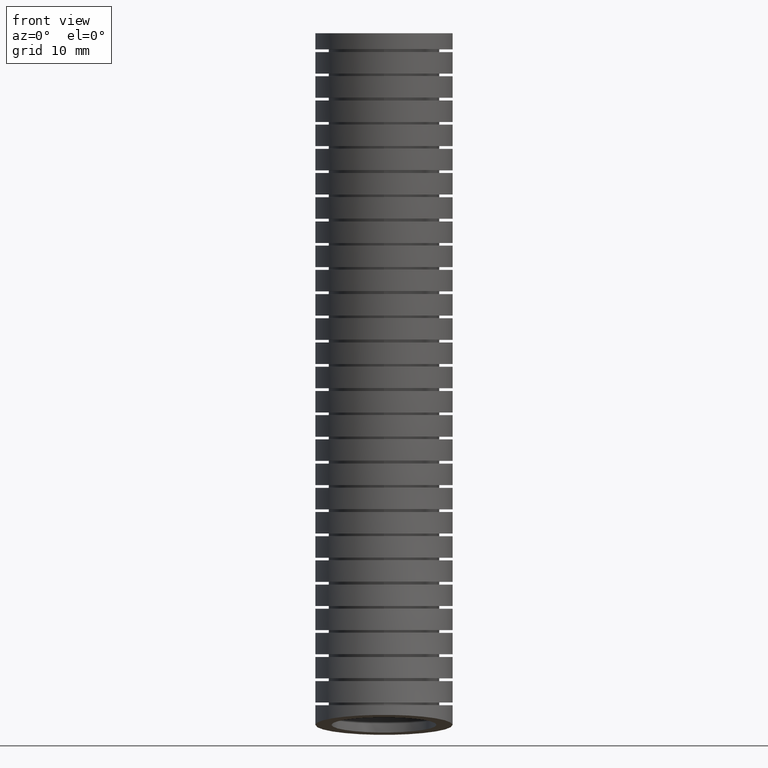
[diagram: clean part render]
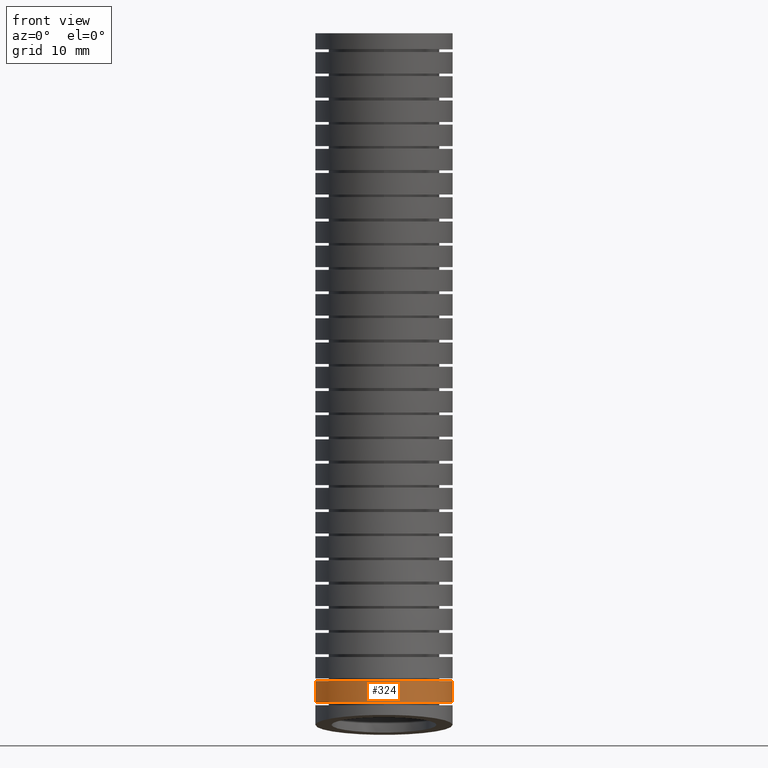
[diagram: same view with one face highlighted and labeled with its STEP entity id]
A machine part, front view. The second image highlights one B-rep face of the part: STEP entity #324.
In plain terms, the highlighted face is a freeform B-spline surface patch.
Its self-contained STEP definition (entity closure, byte-faithful):
#173 = VERTEX_POINT ( 'NONE', #14022 ) ;
#174 = ORIENTED_EDGE ( 'NONE', *, *, #175, .T. ) ;
#175 = EDGE_CURVE ( 'NONE', #173, #176, #14020, .T. ) ;
#176 = VERTEX_POINT ( 'NONE', #14059 ) ;
#177 = ORIENTED_EDGE ( 'NONE', *, *, #178, .F. ) ;
#178 = EDGE_CURVE ( 'NONE', #326, #176, #14218, .T. ) ;
#181 = EDGE_CURVE ( 'NONE', #326, #182, #8550, .T. ) ;
#182 = VERTEX_POINT ( 'NONE', #8501 ) ;
#183 = ORIENTED_EDGE ( 'NONE', *, *, #233, .T. ) ;
#233 = EDGE_CURVE ( 'NONE', #182, #173, #9447, .T. ) ;
#271 = EDGE_LOOP ( 'NONE', ( #325, #183, #174, #177 ) ) ;
#324 = ADVANCED_FACE ( 'NONE', ( #10649 ), #10623, .T. ) ;
#325 = ORIENTED_EDGE ( 'NONE', *, *, #181, .T. ) ;
#326 = VERTEX_POINT ( 'NONE', #10632 ) ;
#8425 = CARTESIAN_POINT ( 'NONE',  ( 0.2485100458545249900, -0.07207423353327933900, -2.407410481768453600 ) ) ;
#8436 = CARTESIAN_POINT ( 'NONE',  ( 0.03334069749266124800, -0.2683763985537767600, -2.407410481768455000 ) ) ;
#8437 = CARTESIAN_POINT ( 'NONE',  ( 0.05808364575680254700, -0.2634280595598667600, -2.407410481768454500 ) ) ;
#8438 = CARTESIAN_POINT ( 'NONE',  ( 0.2533524518993227600, -0.04758221342168456700, -2.407410481768454100 ) ) ;
#8439 = CARTESIAN_POINT ( 'NONE',  ( 0.2550000000000000000, -0.03098518354081028100, -2.407410481768462100 ) ) ;
#8440 = CARTESIAN_POINT ( 'NONE',  ( -0.1923210377265270900, -0.1829916689837926000, -2.407410481768454100 ) ) ;
#8441 = CARTESIAN_POINT ( 'NONE',  ( -0.1685286900021237800, -0.2068985547765717900, -2.407410481768454100 ) ) ;
#8442 = CARTESIAN_POINT ( 'NONE',  ( -0.1556524424761622500, -0.2174925915411791400, -2.407410481768454500 ) ) ;
#8461 = CARTESIAN_POINT ( 'NONE',  ( 0.1686871809188776100, -0.2067418145715040100, -2.407410481768453200 ) ) ;
#8462 = CARTESIAN_POINT ( 'NONE',  ( 0.1922009159305582700, -0.1831098512514559900, -2.407410481768454100 ) ) ;
#8475 = CARTESIAN_POINT ( 'NONE',  ( -0.1349205208269358400, -0.2314174407556829100, -2.407410481768454500 ) ) ;
#8476 = CARTESIAN_POINT ( 'NONE',  ( -0.1277718843666718900, -0.2357289461575738700, -2.407410481768454100 ) ) ;
#8477 = CARTESIAN_POINT ( 'NONE',  ( -0.1129864231552661600, -0.2436748179047485400, -2.407410481768454500 ) ) ;
#8478 = CARTESIAN_POINT ( 'NONE',  ( -0.2468423451062027000, -0.08045078862905545600, -2.407410481768455400 ) ) ;
#8479 = CARTESIAN_POINT ( 'NONE',  ( -0.2420373269546816600, -0.09638449210742997000, -2.407410481768454500 ) ) ;
#8480 = CARTESIAN_POINT ( 'NONE',  ( -0.2324647302175367200, -0.1196213205463506300, -2.407410481768454100 ) ) ;
#8481 = CARTESIAN_POINT ( 'NONE',  ( -0.2288561497043475100, -0.1272878292703547600, -2.407410481768454500 ) ) ;
#8496 = CARTESIAN_POINT ( 'NONE',  ( 0.1349555726585154300, -0.2313982143028838800, -2.407410481768457200 ) ) ;
#8497 = CARTESIAN_POINT ( 'NONE',  ( 0.1558550957528045400, -0.2173477588613101100, -2.407410481768457600 ) ) ;
#8498 = CARTESIAN_POINT ( 'NONE',  ( -0.2209797458559633900, -0.1420841053623014300, -2.407410481768454500 ) ) ;
#8499 = CARTESIAN_POINT ( 'NONE',  ( -0.2167028096483910600, -0.1492455663876947300, -2.407410481768455000 ) ) ;
#8500 = CARTESIAN_POINT ( 'NONE',  ( -0.2028761243439037000, -0.1700341204986076100, -2.407410481768454100 ) ) ;
#8501 = CARTESIAN_POINT ( 'NONE',  ( -0.2550000000000000600, -0.01410776443759911300, -2.407410481768455800 ) ) ;
#8525 = CARTESIAN_POINT ( 'NONE',  ( 0.1129659608048989800, -0.2436839424722079300, -2.407410481768456300 ) ) ;
#8526 = CARTESIAN_POINT ( 'NONE',  ( 0.1277041458381283400, -0.2357672105551494900, -2.407410481768455800 ) ) ;
#8527 = CARTESIAN_POINT ( 'NONE',  ( 0.2416588995135868800, -0.09622439465497427400, -2.407410481768455400 ) ) ;
#8528 = CARTESIAN_POINT ( 'NONE',  ( 0.2464978023003988300, -0.08017048789036862500, -2.407410481768455400 ) ) ;
#8540 = CARTESIAN_POINT ( 'NONE',  ( -0.03347569968765239800, -0.2683509695397242600, -2.407410481768453200 ) ) ;
#8541 = CARTESIAN_POINT ( 'NONE',  ( -0.01655565522888051100, -0.2700190946783576600, -2.407410481768455400 ) ) ;
#8542 = CARTESIAN_POINT ( 'NONE',  ( 0.01676236492900588800, -0.2700055421967418300, -2.407410481768456300 ) ) ;
#8550 = B_SPLINE_CURVE_WITH_KNOTS ( 'NONE', 3,
 ( #8586, #8439, #8438, #8425, #8528, #8527, #8587, #8557, #8556, #8551, #8462, #8461, #8497, #8496, #8526, #8525, #8560, #8559, #8558, #8437, #8436, #8542, #8541, #8540, #8590, #8589, #8588, #8477, #8476, #8475, #8442, #8441, #8440, #8500, #8499, #8498, #8481, #8480, #8479, #8478, #8601, #8600, #8599 ),
 .UNSPECIFIED., .F., .F.,
 ( 4, 2, 2, 2, 2, 2, 2, 2, 1, 2, 2, 2, 2, 2, 2, 2, 2, 2, 2, 2, 2, 4 ),
 ( 0.0000000000000000000, 0.001267830182497088400, 0.001901745273745633000, 0.002535660364994177600, 0.003803490547491266400, 0.005071320729988355200, 0.006339150912485443100, 0.006973066003733986200, 0.007606981094982529300, 0.008240896186231073300, 0.008874811277479615500, 0.01014264145997670000, 0.01141047164247378600, 0.01267830182497087200, 0.01331221691621941600, 0.01394613200746796200, 0.01521396218996504500, 0.01648179237246212900, 0.01711570746371067100, 0.01774962255495921400, 0.01901745273745629800, 0.02028528291995337900 ),
 .UNSPECIFIED. ) ;
#8551 = CARTESIAN_POINT ( 'NONE',  ( 0.2029587442103159600, -0.1699307810260021200, -2.407410481768454500 ) ) ;
#8556 = CARTESIAN_POINT ( 'NONE',  ( 0.2214264641819741200, -0.1421224019075220700, -2.407410481768453600 ) ) ;
#8557 = CARTESIAN_POINT ( 'NONE',  ( 0.2292415539635307400, -0.1274318748138144900, -2.407410481768454100 ) ) ;
#8558 = CARTESIAN_POINT ( 'NONE',  ( 0.06626987614152989000, -0.2613614293142700900, -2.407410481768457200 ) ) ;
#8559 = CARTESIAN_POINT ( 'NONE',  ( 0.08224843465414778700, -0.2564800942706355600, -2.407410481768456300 ) ) ;
#8560 = CARTESIAN_POINT ( 'NONE',  ( 0.09791505386492506400, -0.2508353927109932000, -2.407410481768452300 ) ) ;
#8586 = CARTESIAN_POINT ( 'NONE',  ( 0.2550000000000000000, -0.01410776443760048200, -2.407410481768461600 ) ) ;
#8587 = CARTESIAN_POINT ( 'NONE',  ( 0.2388177661885718400, -0.1042064535128060900, -2.407410481768454100 ) ) ;
#8588 = CARTESIAN_POINT ( 'NONE',  ( -0.1053376233048346500, -0.2473082277569037000, -2.407410481768455000 ) ) ;
#8589 = CARTESIAN_POINT ( 'NONE',  ( -0.08216044623300844400, -0.2569459925756253900, -2.407410481768454500 ) ) ;
#8590 = CARTESIAN_POINT ( 'NONE',  ( -0.06624226148452007400, -0.2617948468038615000, -2.407410481768452300 ) ) ;
#8599 = CARTESIAN_POINT ( 'NONE',  ( -0.2550000000000000600, -0.01410776443759911300, -2.407410481768455800 ) ) ;
#8600 = CARTESIAN_POINT ( 'NONE',  ( -0.2550000000000001700, -0.03077924525727822700, -2.407410481768457600 ) ) ;
#8601 = CARTESIAN_POINT ( 'NONE',  ( -0.2533386952296587900, -0.04770956511467155900, -2.407410481768456300 ) ) ;
#9417 = CARTESIAN_POINT ( 'NONE',  ( -0.2549999999999999500, -0.01665351490929789200, -2.433937953203524400 ) ) ;
#9418 = CARTESIAN_POINT ( 'NONE',  ( -0.2550000000000000600, -0.01410776443759911300, -2.407410481768455800 ) ) ;
#9447 = B_SPLINE_CURVE_WITH_KNOTS ( 'NONE', 3,
 ( #9418, #9417, #9450, #9449 ),
 .UNSPECIFIED., .F., .F.,
 ( 4, 4 ),
 ( 0.9365245940227133700, 0.9675916593675094600 ),
 .UNSPECIFIED. ) ;
#9449 = CARTESIAN_POINT ( 'NONE',  ( -0.2550000000000000000, -0.02183161863403823900, -2.486989538721972700 ) ) ;
#9450 = CARTESIAN_POINT ( 'NONE',  ( -0.2549999999999999500, -0.01923376071193444100, -2.460464087349594700 ) ) ;
#10559 = CARTESIAN_POINT ( 'NONE',  ( -0.2550000000000000000, 3.122849337825751200E-017, 0.0000000000000000000 ) ) ;
#10560 = CARTESIAN_POINT ( 'NONE',  ( -0.2550000000000000000, -0.5345687628602172600, -2.495768177001302000 ) ) ;
#10561 = CARTESIAN_POINT ( 'NONE',  ( -0.2549999999999999500, -0.5167458791807605400, -2.314072652159792300 ) ) ;
#10562 = CARTESIAN_POINT ( 'NONE',  ( -0.2550000000000001200, -0.4814916653277938100, -1.954673297706683400 ) ) ;
#10563 = CARTESIAN_POINT ( 'NONE',  ( -0.2550000000000001200, -0.4555031947619409000, -1.130488866548372800 ) ) ;
#10564 = CARTESIAN_POINT ( 'NONE',  ( -0.2550000000000000600, -0.4871836107831824000, -0.4733061666967772200 ) ) ;
#10565 = CARTESIAN_POINT ( 'NONE',  ( -0.2550000000000000600, -0.5100000000000000100, 0.0000000000000000000 ) ) ;
#10566 = CARTESIAN_POINT ( 'NONE',  ( 0.2549999999999999500, -0.5345687628602172600, -2.495768177001302000 ) ) ;
#10567 = CARTESIAN_POINT ( 'NONE',  ( 0.2549999999999998900, -0.5167458791807605400, -2.314072652159792300 ) ) ;
#10568 = CARTESIAN_POINT ( 'NONE',  ( 0.2550000000000000000, -0.4814916653277938100, -1.954673297706683400 ) ) ;
#10589 = CARTESIAN_POINT ( 'NONE',  ( 0.2550000000000000000, 0.5330634971365140200, -2.054151974607116000 ) ) ;
#10590 = CARTESIAN_POINT ( 'NONE',  ( 0.2550000000000000000, 0.5652806686658973200, -1.166484199753219600 ) ) ;
#10591 = CARTESIAN_POINT ( 'NONE',  ( 0.2550000000000000000, 0.5331445723641462500, -0.4883764727230331400 ) ) ;
#10592 = CARTESIAN_POINT ( 'NONE',  ( 0.2550000000000000000, 0.5100000000000000100, 0.0000000000000000000 ) ) ;
#10593 = CARTESIAN_POINT ( 'NONE',  ( -0.2549999999999998900, 0.4745687628602173200, -2.644231822998695900 ) ) ;
#10594 = CARTESIAN_POINT ( 'NONE',  ( -0.2549999999999998400, 0.4942108475508936700, -2.446087519929936800 ) ) ;
#10595 = CARTESIAN_POINT ( 'NONE',  ( -0.2550000000000000000, 0.5330634971365140200, -2.054151974607116000 ) ) ;
#10596 = CARTESIAN_POINT ( 'NONE',  ( -0.2550000000000000000, 0.5652806686658973200, -1.166484199753219600 ) ) ;
#10597 = CARTESIAN_POINT ( 'NONE',  ( -0.2549999999999999500, 0.5331445723641462500, -0.4883764727230331400 ) ) ;
#10598 = CARTESIAN_POINT ( 'NONE',  ( -0.2549999999999999500, 0.5100000000000000100, 0.0000000000000000000 ) ) ;
#10599 = CARTESIAN_POINT ( 'NONE',  ( -0.2550000000000000000, -0.02999999999999999500, -2.569999999999999800 ) ) ;
#10600 = CARTESIAN_POINT ( 'NONE',  ( -0.2550000000000000000, -0.01126751581493334900, -2.380080086044865000 ) ) ;
#10601 = CARTESIAN_POINT ( 'NONE',  ( -0.2550000000000000000, 0.02578591590436009300, -2.004412636156899000 ) ) ;
#10602 = CARTESIAN_POINT ( 'NONE',  ( -0.2550000000000001700, 0.05488873695197826800, -1.148486533150796300 ) ) ;
#10603 = CARTESIAN_POINT ( 'NONE',  ( -0.2550000000000000000, 0.02298048079048194800, -0.4808413197099051800 ) ) ;
#10623 =( BOUNDED_SURFACE ( )  B_SPLINE_SURFACE ( 3, 3, ( 
 ( #10694, #10693, #10692, #10691, #10690, #10689 ),
 ( #10688, #10687, #10686, #10568, #10567, #10566 ),
 ( #10565, #10564, #10563, #10562, #10561, #10560 ),
 ( #10559, #10603, #10602, #10601, #10600, #10599 ),
 ( #10598, #10597, #10596, #10595, #10594, #10593 ),
 ( #10592, #10591, #10590, #10589, #10667, #10666 ),
 ( #10665, #10664, #10663, #10662, #10661, #10660 ) ),
 .UNSPECIFIED., .F., .F., .T. ) 
 B_SPLINE_SURFACE_WITH_KNOTS ( ( 4, 3, 4 ),
 ( 4, 1, 1, 4 ),
 ( 0.0000000000000000000, 0.5000000000000000000, 1.000000000000000000 ),
 ( 0.0000000000000000000, 0.5599999999999998300, 0.7775565539011162200, 1.000000000000000000 ),
 .UNSPECIFIED. ) 
 GEOMETRIC_REPRESENTATION_ITEM ( )  RATIONAL_B_SPLINE_SURFACE ( (
 ( 1.000000000000000000, 1.000000000000000000, 0.9999999999999998900, 1.000000000000000000, 1.000000000000000000, 1.000000000000000000),
 ( 0.3333333333333333100, 0.3333333333333333100, 0.3333333333333332600, 0.3333333333333332600, 0.3333333333333333700, 0.3333333333333333100),
 ( 0.3333333333333333100, 0.3333333333333333100, 0.3333333333333332600, 0.3333333333333332600, 0.3333333333333333700, 0.3333333333333333100),
 ( 1.000000000000000000, 1.000000000000000000, 0.9999999999999998900, 1.000000000000000000, 1.000000000000000000, 1.000000000000000000),
 ( 0.3333333333333333100, 0.3333333333333333100, 0.3333333333333332600, 0.3333333333333332600, 0.3333333333333333700, 0.3333333333333333100),
 ( 0.3333333333333333100, 0.3333333333333333100, 0.3333333333333332600, 0.3333333333333332600, 0.3333333333333333700, 0.3333333333333333100),
 ( 1.000000000000000000, 1.000000000000000000, 0.9999999999999998900, 1.000000000000000000, 1.000000000000000000, 1.000000000000000000) ) ) 
 REPRESENTATION_ITEM ( '' )  SURFACE ( )  );
#10632 = CARTESIAN_POINT ( 'NONE',  ( 0.2550000000000000000, -0.01410776443760048200, -2.407410481768461600 ) ) ;
#10649 = FACE_OUTER_BOUND ( 'NONE', #271, .T. ) ;
#10660 = CARTESIAN_POINT ( 'NONE',  ( 0.2550000000000000000, -0.03000000000000002700, -2.569999999999999800 ) ) ;
#10661 = CARTESIAN_POINT ( 'NONE',  ( 0.2550000000000000000, -0.01126751581493337800, -2.380080086044865000 ) ) ;
#10662 = CARTESIAN_POINT ( 'NONE',  ( 0.2550000000000000000, 0.02578591590436005500, -2.004412636156899000 ) ) ;
#10663 = CARTESIAN_POINT ( 'NONE',  ( 0.2550000000000001700, 0.05488873695197821200, -1.148486533150796300 ) ) ;
#10664 = CARTESIAN_POINT ( 'NONE',  ( 0.2550000000000000000, 0.02298048079048191000, -0.4808413197099051800 ) ) ;
#10665 = CARTESIAN_POINT ( 'NONE',  ( 0.2550000000000000000, 0.0000000000000000000, 0.0000000000000000000 ) ) ;
#10666 = CARTESIAN_POINT ( 'NONE',  ( 0.2549999999999999500, 0.4745687628602173200, -2.644231822998695900 ) ) ;
#10667 = CARTESIAN_POINT ( 'NONE',  ( 0.2549999999999998900, 0.4942108475508936700, -2.446087519929936800 ) ) ;
#10686 = CARTESIAN_POINT ( 'NONE',  ( 0.2550000000000000000, -0.4555031947619409000, -1.130488866548372800 ) ) ;
#10687 = CARTESIAN_POINT ( 'NONE',  ( 0.2550000000000000000, -0.4871836107831824000, -0.4733061666967772200 ) ) ;
#10688 = CARTESIAN_POINT ( 'NONE',  ( 0.2550000000000000000, -0.5100000000000000100, 0.0000000000000000000 ) ) ;
#10689 = CARTESIAN_POINT ( 'NONE',  ( 0.2550000000000000000, -0.03000000000000002700, -2.569999999999999800 ) ) ;
#10690 = CARTESIAN_POINT ( 'NONE',  ( 0.2550000000000000000, -0.01126751581493337800, -2.380080086044865000 ) ) ;
#10691 = CARTESIAN_POINT ( 'NONE',  ( 0.2550000000000000000, 0.02578591590436005500, -2.004412636156899000 ) ) ;
#10692 = CARTESIAN_POINT ( 'NONE',  ( 0.2550000000000001700, 0.05488873695197821200, -1.148486533150796300 ) ) ;
#10693 = CARTESIAN_POINT ( 'NONE',  ( 0.2550000000000000000, 0.02298048079048191000, -0.4808413197099051800 ) ) ;
#10694 = CARTESIAN_POINT ( 'NONE',  ( 0.2550000000000000000, 0.0000000000000000000, 0.0000000000000000000 ) ) ;
#14020 = B_SPLINE_CURVE_WITH_KNOTS ( 'NONE', 3,
 ( #14058, #14057, #14056, #14055, #14054, #14053, #14052, #14051, #14050, #14049, #14048, #14047, #14046, #14045, #14044, #14043, #14042, #14041, #14040, #14039, #14038, #14037, #14036, #14241, #14240, #14239, #14238, #14237, #14236, #14235, #14234, #14233, #14232, #14231, #14230, #14229, #14228, #14227, #14226, #14225, #14224, #14223, #14222, #14221 ),
 .UNSPECIFIED., .F., .F.,
 ( 4, 2, 2, 2, 2, 2, 2, 2, 2, 2, 2, 2, 2, 2, 2, 2, 2, 2, 2, 2, 2, 4 ),
 ( 0.02050329607321794600, 0.02114406267689028900, 0.02178482928056263100, 0.02306636248790731500, 0.02434789569525200000, 0.02498866229892434200, 0.02562942890259668400, 0.02691096210994137200, 0.02819249531728605700, 0.02947402852463074400, 0.03011479512830309000, 0.03075556173197543200, 0.03203709493932012400, 0.03331862814666480800, 0.03395939475033715700, 0.03460016135400950000, 0.03588169456135419100, 0.03652246116502653300, 0.03716322776869887500, 0.03844476097604357400, 0.03972629418338825800, 0.04100782739073295700 ),
 .UNSPECIFIED. ) ;
#14022 = CARTESIAN_POINT ( 'NONE',  ( -0.2550000000000000000, -0.02183161863403823900, -2.486989538721972700 ) ) ;
#14036 = CARTESIAN_POINT ( 'NONE',  ( -0.008337066622846537100, -0.2777726703826576300, -2.486989538721973600 ) ) ;
#14037 = CARTESIAN_POINT ( 'NONE',  ( -0.01666126252495555100, -0.2773644545693785300, -2.486989538721972700 ) ) ;
#14038 = CARTESIAN_POINT ( 'NONE',  ( -0.03331925613347318200, -0.2757180128102743000, -2.486989538721972300 ) ) ;
#14039 = CARTESIAN_POINT ( 'NONE',  ( -0.04169738490293139300, -0.2744686118789528800, -2.486989538721972300 ) ) ;
#14040 = CARTESIAN_POINT ( 'NONE',  ( -0.06637060542910468200, -0.2695248256912062800, -2.486989538721972700 ) ) ;
#14041 = CARTESIAN_POINT ( 'NONE',  ( -0.08228731353549508000, -0.2646580422934525200, -2.486989538721972300 ) ) ;
#14042 = CARTESIAN_POINT ( 'NONE',  ( -0.1130768193822373200, -0.2518425572829863800, -2.486989538721972300 ) ) ;
#14043 = CARTESIAN_POINT ( 'NONE',  ( -0.1280643133105245400, -0.2437867014107375800, -2.486989538721974000 ) ) ;
#14044 = CARTESIAN_POINT ( 'NONE',  ( -0.1557509285903316800, -0.2251738287615326400, -2.486989538721972700 ) ) ;
#14045 = CARTESIAN_POINT ( 'NONE',  ( -0.1685907836563877200, -0.2145881367168533100, -2.486989538721972300 ) ) ;
#14046 = CARTESIAN_POINT ( 'NONE',  ( -0.1863265351126625600, -0.1967666811589312300, -2.486989538721971800 ) ) ;
#14047 = CARTESIAN_POINT ( 'NONE',  ( -0.1919996738749277200, -0.1904731053683366700, -2.486989538721971800 ) ) ;
#14048 = CARTESIAN_POINT ( 'NONE',  ( -0.2025886318077677900, -0.1774939109599760500, -2.486989538721972300 ) ) ;
#14049 = CARTESIAN_POINT ( 'NONE',  ( -0.2075345815745345300, -0.1707822955243742900, -2.486989538721972700 ) ) ;
#14050 = CARTESIAN_POINT ( 'NONE',  ( -0.2213486753085220100, -0.1499953018495229800, -2.486989538721973600 ) ) ;
#14051 = CARTESIAN_POINT ( 'NONE',  ( -0.2292181325692568000, -0.1352375656385214100, -2.486989538721973600 ) ) ;
#14052 = CARTESIAN_POINT ( 'NONE',  ( -0.2420623469880024700, -0.1040682570851001000, -2.486989538721972700 ) ) ;
#14053 = CARTESIAN_POINT ( 'NONE',  ( -0.2468609010755470600, -0.08810457896550709400, -2.486989538721973600 ) ) ;
#14054 = CARTESIAN_POINT ( 'NONE',  ( -0.2517161043987686800, -0.06361216758085301600, -2.486989538721973600 ) ) ;
#14055 = CARTESIAN_POINT ( 'NONE',  ( -0.2529411938913236300, -0.05535621055599420500, -2.486989538721972700 ) ) ;
#14056 = CARTESIAN_POINT ( 'NONE',  ( -0.2545857403049626200, -0.03865621891947866600, -2.486989538721972700 ) ) ;
#14057 = CARTESIAN_POINT ( 'NONE',  ( -0.2549999999999998900, -0.03019892792309034800, -2.486989538721971400 ) ) ;
#14058 = CARTESIAN_POINT ( 'NONE',  ( -0.2550000000000000000, -0.02183161863403823900, -2.486989538721972700 ) ) ;
#14059 = CARTESIAN_POINT ( 'NONE',  ( 0.2550000000000000000, -0.02183161863403834700, -2.486989538721972700 ) ) ;
#14210 = CARTESIAN_POINT ( 'NONE',  ( 0.2550000000000000000, -0.02183161863403834700, -2.486989538721972700 ) ) ;
#14211 = CARTESIAN_POINT ( 'NONE',  ( 0.2550000000000000000, -0.01923376071193469400, -2.460464087349596900 ) ) ;
#14212 = CARTESIAN_POINT ( 'NONE',  ( 0.2550000000000000000, -0.01665351490929832500, -2.433937953203528800 ) ) ;
#14213 = CARTESIAN_POINT ( 'NONE',  ( 0.2550000000000000000, -0.01410776443760048200, -2.407410481768461600 ) ) ;
#14218 = B_SPLINE_CURVE_WITH_KNOTS ( 'NONE', 3,
 ( #14213, #14212, #14211, #14210 ),
 .UNSPECIFIED., .F., .F.,
 ( 4, 4 ),
 ( 0.9365245940227157100, 0.9675916593675095700 ),
 .UNSPECIFIED. ) ;
#14221 = CARTESIAN_POINT ( 'NONE',  ( 0.2550000000000000000, -0.02183161863403834700, -2.486989538721972700 ) ) ;
#14222 = CARTESIAN_POINT ( 'NONE',  ( 0.2550000000000000000, -0.03870782247033306000, -2.486989538721972700 ) ) ;
#14223 = CARTESIAN_POINT ( 'NONE',  ( 0.2533318577889546700, -0.05546536515219383000, -2.486989538721972300 ) ) ;
#14224 = CARTESIAN_POINT ( 'NONE',  ( 0.2468589044690166200, -0.08811067002668952800, -2.486989538721971400 ) ) ;
#14225 = CARTESIAN_POINT ( 'NONE',  ( 0.2420359897515938500, -0.1041447928325686400, -2.486989538721974500 ) ) ;
#14226 = CARTESIAN_POINT ( 'NONE',  ( 0.2291887797579463800, -0.1352961678998157200, -2.486989538721973600 ) ) ;
#14227 = CARTESIAN_POINT ( 'NONE',  ( 0.2213450276436389800, -0.1500031737400304200, -2.486989538721972300 ) ) ;
#14228 = CARTESIAN_POINT ( 'NONE',  ( 0.2075195575317726200, -0.1708037095278940300, -2.486989538721972700 ) ) ;
#14229 = CARTESIAN_POINT ( 'NONE',  ( 0.2025652589031136400, -0.1775256957715359300, -2.486989538721974500 ) ) ;
#14230 = CARTESIAN_POINT ( 'NONE',  ( 0.1919464183254159200, -0.1905352235715831700, -2.486989538721974900 ) ) ;
#14231 = CARTESIAN_POINT ( 'NONE',  ( 0.1862777736541086100, -0.1968181295432094900, -2.486989538721974500 ) ) ;
#14232 = CARTESIAN_POINT ( 'NONE',  ( 0.1685761587625534400, -0.2145979063171791200, -2.486989538721974500 ) ) ;
#14233 = CARTESIAN_POINT ( 'NONE',  ( 0.1557395946686932200, -0.2251852321111075300, -2.486989538721972700 ) ) ;
#14234 = CARTESIAN_POINT ( 'NONE',  ( 0.1349319159651096400, -0.2391679201035723500, -2.486989538721972700 ) ) ;
#14235 = CARTESIAN_POINT ( 'NONE',  ( 0.1276958538728396600, -0.2435305058642556800, -2.486989538721972700 ) ) ;
#14236 = CARTESIAN_POINT ( 'NONE',  ( 0.1128838147420430900, -0.2514840174388613400, -2.486989538721972700 ) ) ;
#14237 = CARTESIAN_POINT ( 'NONE',  ( 0.1053343660337264400, -0.2550665976207188700, -2.486989538721972700 ) ) ;
#14238 = CARTESIAN_POINT ( 'NONE',  ( 0.08226728336073288500, -0.2646635557730631600, -2.486989538721972300 ) ) ;
#14239 = CARTESIAN_POINT ( 'NONE',  ( 0.06633496125419244300, -0.2695382772827780200, -2.486989538721974000 ) ) ;
#14240 = CARTESIAN_POINT ( 'NONE',  ( 0.03332490344587804600, -0.2761398656319606900, -2.486989538721974000 ) ) ;
#14241 = CARTESIAN_POINT ( 'NONE',  ( 0.01662137398313624400, -0.2777743980183466400, -2.486989538721972700 ) ) ;